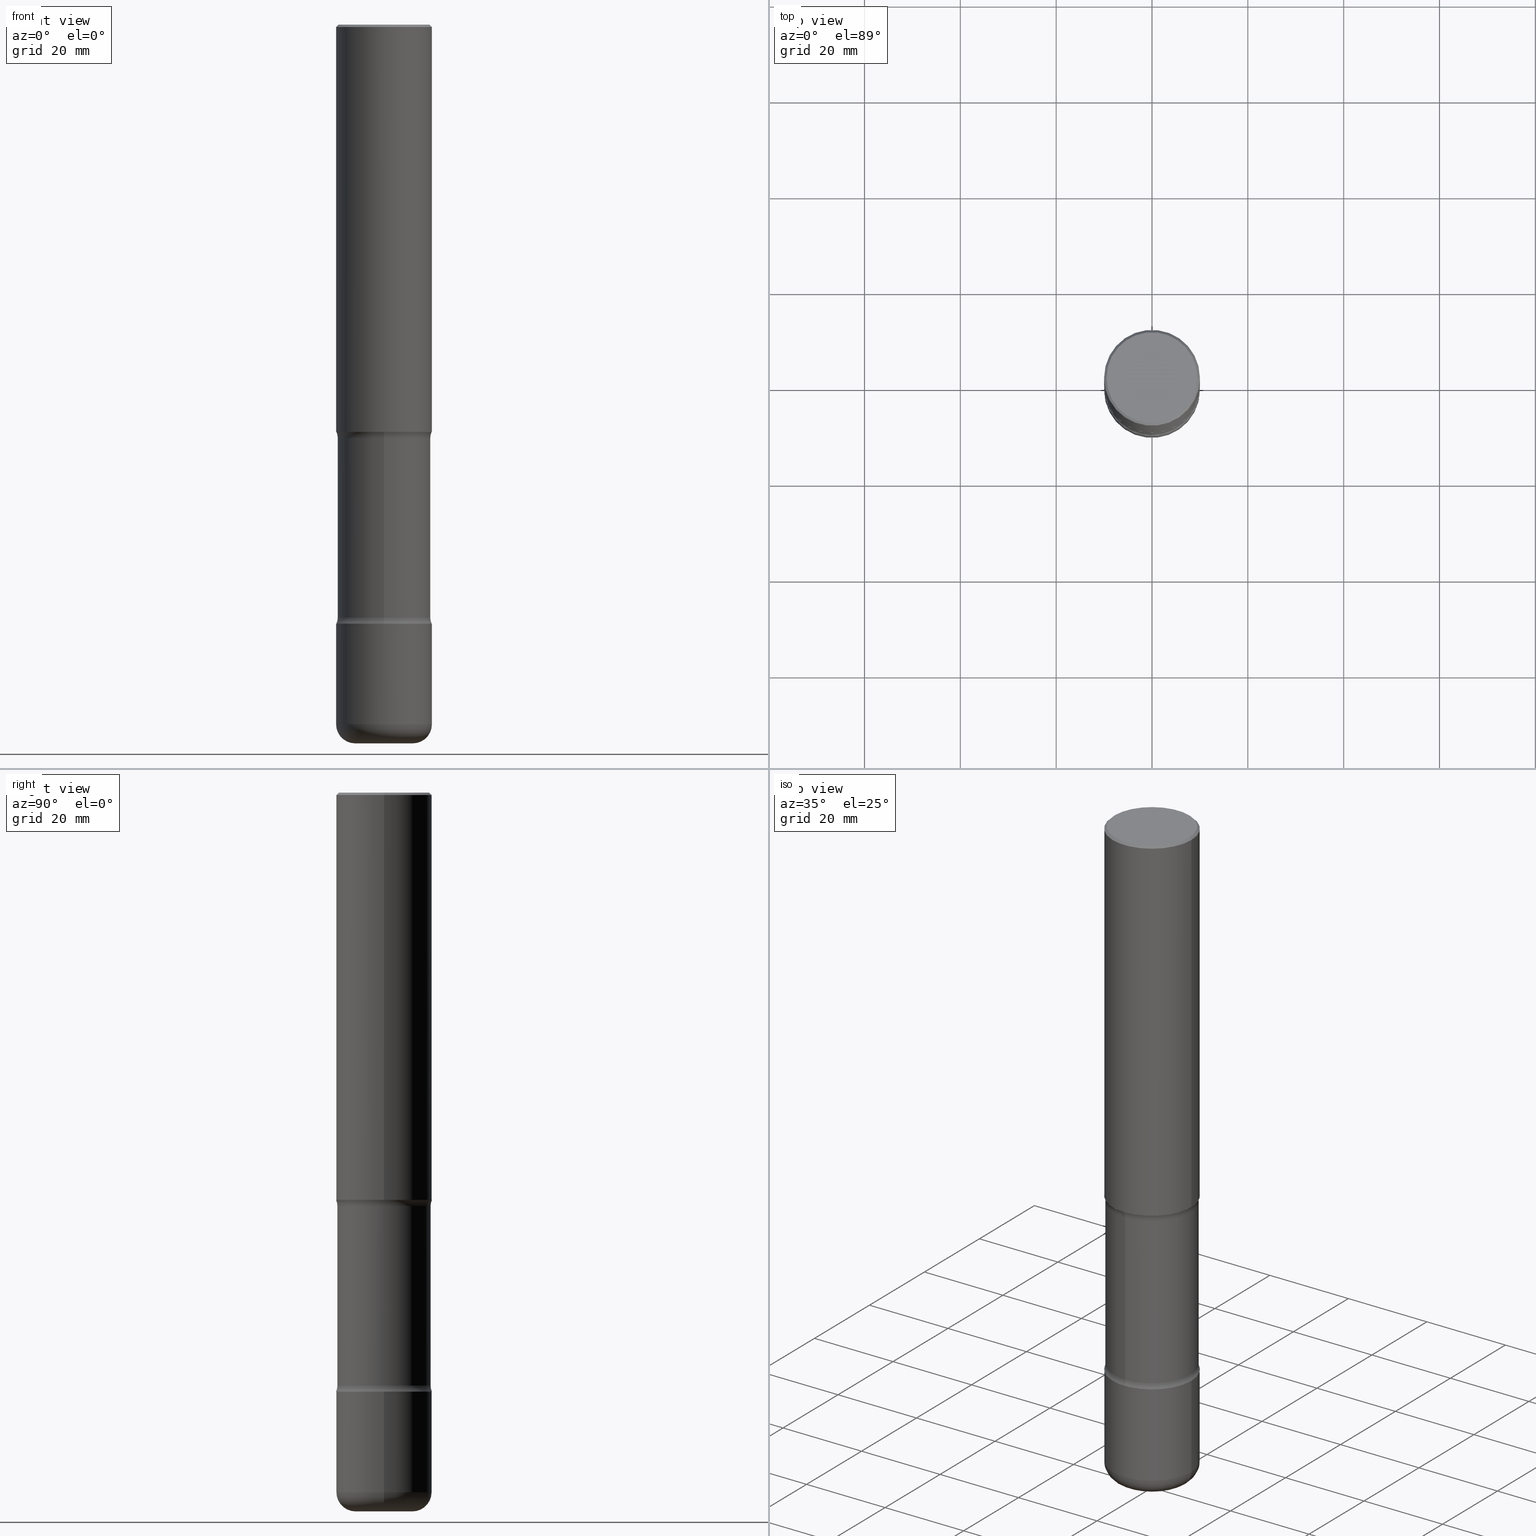
[diagram: canonical four-view strip — front | top / right | iso, engineering-drawing reading convention]
A machine part, canonical four-view strip (front | top / right | iso — engineering-drawing reading convention). The complete STEP part file that produces these views, byte-faithful:
ISO-10303-21;
HEADER;
FILE_DESCRIPTION (( 'STEP AP203' ),
    '1' );
FILE_NAME ('44808.STEP',
    '2024-03-02T03:36:44',
    ( '' ),
    ( '' ),
    'SwSTEP 2.0',
    'SolidWorks 2023',
    '' );
FILE_SCHEMA (( 'CONFIG_CONTROL_DESIGN' ));
ENDSEC;

DATA;
#1 = EDGE_CURVE ( 'NONE', #225, #136, #164, .T. ) ;
#2 = EDGE_LOOP ( 'NONE', ( #224, #547, #9, #104 ) ) ;
#3 = EDGE_CURVE ( 'NONE', #494, #309, #173, .T. ) ;
#4 = CARTESIAN_POINT ( 'NONE',  ( -0.3936999999999998279, 2.679362779428218735E-15, -0.02000000000000008715 ) ) ;
#5 = CARTESIAN_POINT ( 'NONE',  ( 0.3937000000000001609, -1.993147037091996521E-14, -4.921199999999998020 ) ) ;
#6 = ORIENTED_EDGE ( 'NONE', *, *, #231, .T. ) ;
#7 = PRODUCT ( '44808', '44808', '', ( #421 ) ) ;
#8 = CARTESIAN_POINT ( 'NONE',  ( -0.2362000000000002709, -1.810613454482786010E-14, -5.905499999999998195 ) ) ;
#9 = ORIENTED_EDGE ( 'NONE', *, *, #404, .T. ) ;
#10 =( NAMED_UNIT ( * ) SI_UNIT ( $, .STERADIAN. ) SOLID_ANGLE_UNIT ( ) );
#11 = AXIS2_PLACEMENT_3D ( 'NONE', #432, #268, #402 ) ;
#12 = CARTESIAN_POINT ( 'NONE',  ( 1.203464108899828931E-28, -1.718227796471488199E-14, -4.921199999999998020 ) ) ;
#13 = CIRCLE ( 'NONE', #59, 0.3937000000000002164 ) ;
#14 = ORIENTED_EDGE ( 'NONE', *, *, #61, .T. ) ;
#15 = DIRECTION ( 'NONE',  ( 1.000000000000000000, -6.982962677686265133E-15, 0.000000000000000000 ) ) ;
#16 = CARTESIAN_POINT ( 'NONE',  ( 3.548392484666395067E-15, 0.5081499999999830042, -4.870938707736469198 ) ) ;
#17 = FACE_OUTER_BOUND ( 'NONE', #95, .T. ) ;
#18 = ORIENTED_EDGE ( 'NONE', *, *, #371, .T. ) ;
#19 = DIRECTION ( 'NONE',  ( -2.445468806185136597E-29, 3.491481338843145583E-15, 1.000000000000000000 ) ) ;
#20 = FACE_OUTER_BOUND ( 'NONE', #278, .T. ) ;
#21 = PRODUCT_DEFINITION ( 'UNKNOWN', '', #300, #152 ) ;
#22 = VERTEX_POINT ( 'NONE', #163 ) ;
#23 = VECTOR ( 'NONE', #491, 39.37007874015748143 ) ;
#24 = FACE_OUTER_BOUND ( 'NONE', #127, .T. ) ;
#25 = DIRECTION ( 'NONE',  ( 1.000000000000000000, -6.982962677686265922E-15, 4.876176775795935793E-29 ) ) ;
#26 = EDGE_LOOP ( 'NONE', ( #372, #112 ) ) ;
#27 = CALENDAR_DATE ( 2024, 1, 3 ) ;
#28 = ORIENTED_EDGE ( 'NONE', *, *, #496, .F. ) ;
#29 = APPROVAL_DATE_TIME ( #250, #436 ) ;
#30 = ORIENTED_EDGE ( 'NONE', *, *, #431, .T. ) ;
#31 = CALENDAR_DATE ( 2024, 1, 3 ) ;
#32 = CARTESIAN_POINT ( 'NONE',  ( 1.190714821994619211E-28, -1.701335106103498951E-14, -4.870938707736467421 ) ) ;
#33 = COORDINATED_UNIVERSAL_TIME_OFFSET ( 5, 0, .BEHIND. ) ;
#34 = LINE ( 'NONE', #167, #23 ) ;
#35 = EDGE_CURVE ( 'NONE', #354, #72, #65, .T. ) ;
#36 = DIRECTION ( 'NONE',  ( -2.445468806185136597E-29, 3.491481338843145583E-15, 1.000000000000000000 ) ) ;
#37 = DIRECTION ( 'NONE',  ( 1.000000000000000000, 0.000000000000000000, 0.000000000000000000 ) ) ;
#38 = DIRECTION ( 'NONE',  ( -2.445468806185136597E-29, 3.491481338843145583E-15, 1.000000000000000000 ) ) ;
#39 = CC_DESIGN_PERSON_AND_ORGANIZATION_ASSIGNMENT ( #373, #459, ( #221 ) ) ;
#40 = CARTESIAN_POINT ( 'NONE',  ( 3.548392484666357991E-15, 0.5081499999999880002, -3.396661292263530640 ) ) ;
#41 = AXIS2_PLACEMENT_3D ( 'NONE', #120, #420, #468 ) ;
#42 = AXIS2_PLACEMENT_3D ( 'NONE', #461, #64, #103 ) ;
#43 = CARTESIAN_POINT ( 'NONE',  ( 1.203464108899828931E-28, -1.718227796471488199E-14, -4.921199999999998020 ) ) ;
#44 = CARTESIAN_POINT ( 'NONE',  ( 1.444171603492631822E-28, -2.061894304653818881E-14, -5.905499999999998195 ) ) ;
#45 = ADVANCED_FACE ( 'NONE', ( #215 ), #521, .F. ) ;
#46 = AXIS2_PLACEMENT_3D ( 'NONE', #471, #262, #527 ) ;
#47 = APPLICATION_CONTEXT ( 'configuration controlled 3d designs of mechanical parts and assemblies' ) ;
#48 = CIRCLE ( 'NONE', #492, 0.3936999999999998279 ) ;
#49 = DIRECTION ( 'NONE',  ( 1.000000000000000000, -6.982962677686265133E-15, 0.000000000000000000 ) ) ;
#50 = ORIENTED_EDGE ( 'NONE', *, *, #99, .F. ) ;
#51 = LINE ( 'NONE', #4, #365 ) ;
#52 = ADVANCED_FACE ( 'NONE', ( #78 ), #125, .T. ) ;
#53 = EDGE_LOOP ( 'NONE', ( #348, #318 ) ) ;
#54 = FACE_OUTER_BOUND ( 'NONE', #149, .T. ) ;
#55 = CC_DESIGN_PERSON_AND_ORGANIZATION_ASSIGNMENT ( #110, #79, ( #300 ) ) ;
#56 = CARTESIAN_POINT ( 'NONE',  ( -2.700978061722532529E-15, -0.3937000000000173139, -4.921199999999997132 ) ) ;
#57 = CIRCLE ( 'NONE', #399, 0.3831499999999999906 ) ;
#58 = DIRECTION ( 'NONE',  ( -6.982962677686269077E-15, -1.000000000000000000, 0.000000000000000000 ) ) ;
#59 = AXIS2_PLACEMENT_3D ( 'NONE', #495, #137, #319 ) ;
#60 = CARTESIAN_POINT ( 'NONE',  ( 0.3937000000000002164, -2.749192406205084794E-15, 1.919750796630861012E-29 ) ) ;
#61 = EDGE_CURVE ( 'NONE', #406, #309, #385, .T. ) ;
#62 = CARTESIAN_POINT ( 'NONE',  ( 0.000000000000000000, 0.000000000000000000, 0.000000000000000000 ) ) ;
#63 = ORIENTED_EDGE ( 'NONE', *, *, #151, .T. ) ;
#64 = DIRECTION ( 'NONE',  ( 2.536601494120493495E-29, -3.360974142769239712E-15, -1.000000000000000000 ) ) ;
#65 = CIRCLE ( 'NONE', #315, 0.1250000000000000278 ) ;
#66 = APPROVAL_PERSON_ORGANIZATION ( #165, #124, #329 ) ;
#67 = ORIENTED_EDGE ( 'NONE', *, *, #139, .F. ) ;
#68 = APPLICATION_CONTEXT ( 'configuration controlled 3d designs of mechanical parts and assemblies' ) ;
#69 =( CONVERSION_BASED_UNIT ( 'INCH', #445 ) LENGTH_UNIT ( ) NAMED_UNIT ( #346 ) );
#70 = EDGE_CURVE ( 'NONE', #225, #157, #462, .T. ) ;
#71 = ORIENTED_EDGE ( 'NONE', *, *, #474, .F. ) ;
#72 = VERTEX_POINT ( 'NONE', #85 ) ;
#73 = ORIENTED_EDGE ( 'NONE', *, *, #361, .F. ) ;
#74 = CLOSED_SHELL ( 'NONE', ( #307, #279, #423, #559, #330, #259 ) ) ;
#75 = CIRCLE ( 'NONE', #539, 0.3831500000000000461 ) ;
#76 = EDGE_CURVE ( 'NONE', #438, #192, #526, .T. ) ;
#77 = CARTESIAN_POINT ( 'NONE',  ( 1.453141793966108941E-28, -2.049048481344264493E-14, -5.905499999999998195 ) ) ;
#78 = FACE_OUTER_BOUND ( 'NONE', #458, .T. ) ;
#79 = PERSON_AND_ORGANIZATION_ROLE ( 'design_supplier' ) ;
#80 = EDGE_CURVE ( 'NONE', #157, #438, #168, .T. ) ;
#81 = DIRECTION ( 'NONE',  ( 6.982962677686265922E-15, 1.000000000000000000, -2.775563112689115512E-15 ) ) ;
#82 = DIRECTION ( 'NONE',  ( -2.536601494120493495E-29, 3.360974142769239318E-15, 1.000000000000000000 ) ) ;
#83 = CIRCLE ( 'NONE', #236, 0.3937000000000001609 ) ;
#84 = AXIS2_PLACEMENT_3D ( 'NONE', #183, #19, #146 ) ;
#85 = CARTESIAN_POINT ( 'NONE',  ( 2.749192406205166047E-15, 0.3936999999999885036, -3.346399999999999153 ) ) ;
#86 = FACE_OUTER_BOUND ( 'NONE', #523, .T. ) ;
#87 = AXIS2_PLACEMENT_3D ( 'NONE', #530, #90, #260 ) ;
#88 = APPROVAL_PERSON_ORGANIZATION ( #515, #436, #150 ) ;
#89 = TOROIDAL_SURFACE ( 'NONE', #42, 0.5081500000000001016, 0.1250000000000000555 ) ;
#90 = DIRECTION ( 'NONE',  ( -2.445468806185136597E-29, 3.491481338843145583E-15, 1.000000000000000000 ) ) ;
#91 = DIRECTION ( 'NONE',  ( 1.000000000000000000, -6.982962677686266711E-15, 4.883557194083112340E-29 ) ) ;
#92 = ORIENTED_EDGE ( 'NONE', *, *, #269, .T. ) ;
#93 = DIRECTION ( 'NONE',  ( -1.000000000000000000, 6.982962677686265922E-15, -4.876176775795935793E-29 ) ) ;
#94 = ADVANCED_FACE ( 'NONE', ( #475 ), #509, .T. ) ;
#95 = EDGE_LOOP ( 'NONE', ( #457, #67, #92, #502 ) ) ;
#96 = DIRECTION ( 'NONE',  ( -1.000000000000000000, 6.982962677686265922E-15, -4.876176775795935793E-29 ) ) ;
#97 = CLOSED_SHELL ( 'NONE', ( #52, #261, #506, #292, #128, #45, #254, #356 ) ) ;
#98 = CARTESIAN_POINT ( 'NONE',  ( 2.675522149955611729E-15, 0.3831499999999830042, -4.870938707736469198 ) ) ;
#99 = EDGE_CURVE ( 'NONE', #354, #507, #227, .T. ) ;
#100 = CARTESIAN_POINT ( 'NONE',  ( 8.167493925109434306E-29, -1.205834278836177543E-14, -3.396661292263528420 ) ) ;
#101 = CARTESIAN_POINT ( 'NONE',  ( 8.183516813017936514E-29, -1.168389315230469505E-14, -3.346399999999997821 ) ) ;
#102 = ORIENTED_EDGE ( 'NONE', *, *, #496, .T. ) ;
#103 = DIRECTION ( 'NONE',  ( 6.982962677686266711E-15, 1.000000000000000000, -3.360974142769239712E-15 ) ) ;
#104 = ORIENTED_EDGE ( 'NONE', *, *, #76, .F. ) ;
#105 = EDGE_CURVE ( 'NONE', #529, #157, #216, .T. ) ;
#106 = FACE_OUTER_BOUND ( 'NONE', #242, .T. ) ;
#107 = CIRCLE ( 'NONE', #512, 0.1574999999999997791 ) ;
#108 = AXIS2_PLACEMENT_3D ( 'NONE', #193, #188, #363 ) ;
#109 = ORIENTED_EDGE ( 'NONE', *, *, #118, .T. ) ;
#110 = PERSON_AND_ORGANIZATION ( #489, #504 ) ;
#111 = EDGE_CURVE ( 'NONE', #494, #424, #343, .T. ) ;
#112 = ORIENTED_EDGE ( 'NONE', *, *, #76, .T. ) ;
#113 = COORDINATED_UNIVERSAL_TIME_OFFSET ( 5, 0, .BEHIND. ) ;
#114 = ORIENTED_EDGE ( 'NONE', *, *, #111, .T. ) ;
#115 = EDGE_CURVE ( 'NONE', #309, #406, #57, .T. ) ;
#116 = PLANE ( 'NONE',  #290 ) ;
#117 = PERSON_AND_ORGANIZATION ( #489, #504 ) ;
#118 = EDGE_CURVE ( 'NONE', #424, #494, #83, .T. ) ;
#119 = CARTESIAN_POINT ( 'NONE',  ( -2.664788934784287418E-15, -0.3831500000000169770, -4.870938707736466533 ) ) ;
#120 = CARTESIAN_POINT ( 'NONE',  ( 1.203464108899828931E-28, -1.718227796471488199E-14, -4.921199999999998020 ) ) ;
#121 = DIRECTION ( 'NONE',  ( 1.000000000000000000, -6.982962677686265922E-15, 0.000000000000000000 ) ) ;
#122 = TOROIDAL_SURFACE ( 'NONE', #350, 0.2362000000000002986, 0.1574999999999997513 ) ;
#123 = AXIS2_PLACEMENT_3D ( 'NONE', #77, #293, #467 ) ;
#124 = APPROVAL ( #383, 'UNSPECIFIED' ) ;
#125 = CYLINDRICAL_SURFACE ( 'NONE', #392, 0.3831499999999999906 ) ;
#126 = DIRECTION ( 'NONE',  ( -2.445468806185136597E-29, 3.491481338843145583E-15, 1.000000000000000000 ) ) ;
#127 = EDGE_LOOP ( 'NONE', ( #178, #234, #187, #351 ) ) ;
#128 = ADVANCED_FACE ( 'NONE', ( #255 ), #116, .F. ) ;
#129 = FACE_OUTER_BOUND ( 'NONE', #313, .T. ) ;
#130 = ORIENTED_EDGE ( 'NONE', *, *, #460, .T. ) ;
#131 = EDGE_CURVE ( 'NONE', #157, #529, #153, .T. ) ;
#132 = CLOSED_SHELL ( 'NONE', ( #455, #171, #147, #418, #94, #177 ) ) ;
#133 = DIRECTION ( 'NONE',  ( -2.445468806185136597E-29, 3.491481338843145583E-15, 1.000000000000000000 ) ) ;
#134 = ORIENTED_EDGE ( 'NONE', *, *, #35, .F. ) ;
#135 = DIRECTION ( 'NONE',  ( 2.536601494120493495E-29, -3.360974142769239712E-15, -1.000000000000000000 ) ) ;
#136 = VERTEX_POINT ( 'NONE', #441 ) ;
#137 = DIRECTION ( 'NONE',  ( -2.445468806185136597E-29, 3.491481338843145583E-15, 1.000000000000000000 ) ) ;
#138 = CARTESIAN_POINT ( 'NONE',  ( 0.2362000000000002986, -2.171841052013989672E-14, -5.747999999999999332 ) ) ;
#139 = EDGE_CURVE ( 'NONE', #414, #22, #282, .T. ) ;
#140 = DIRECTION ( 'NONE',  ( -2.445468806185136597E-29, 3.491481338843145583E-15, 1.000000000000000000 ) ) ;
#141 = CARTESIAN_POINT ( 'NONE',  ( 4.890937612370294178E-31, -6.982962677686321191E-17, -0.02000000000000008715 ) ) ;
#142 = AXIS2_PLACEMENT_3D ( 'NONE', #303, #433, #251 ) ;
#143 = ORIENTED_EDGE ( 'NONE', *, *, #209, .F. ) ;
#144 = DIRECTION ( 'NONE',  ( 2.445468806185136597E-29, -3.491481338843145583E-15, -1.000000000000000000 ) ) ;
#145 = ORIENTED_EDGE ( 'NONE', *, *, #99, .T. ) ;
#146 = DIRECTION ( 'NONE',  ( 1.000000000000000000, -6.982962677686266711E-15, 4.876176775795935793E-29 ) ) ;
#147 = ADVANCED_FACE ( 'NONE', ( #54 ), #189, .T. ) ;
#148 = LINE ( 'NONE', #248, #352 ) ;
#149 = EDGE_LOOP ( 'NONE', ( #366, #304 ) ) ;
#150 = APPROVAL_ROLE ( '' ) ;
#151 = EDGE_CURVE ( 'NONE', #136, #225, #364, .T. ) ;
#152 = DESIGN_CONTEXT ( 'detailed design', #68, 'design' ) ;
#153 = CIRCLE ( 'NONE', #46, 0.3937000000000002164 ) ;
#154 = CIRCLE ( 'NONE', #228, 0.3736999999999998101 ) ;
#155 = ORIENTED_EDGE ( 'NONE', *, *, #431, .F. ) ;
#156 = APPROVAL_DATE_TIME ( #370, #480 ) ;
#157 = VERTEX_POINT ( 'NONE', #487 ) ;
#158 = DATE_AND_TIME ( #555, #419 ) ;
#159 = CC_DESIGN_PERSON_AND_ORGANIZATION_ASSIGNMENT ( #295, #469, ( #7 ) ) ;
#160 = CARTESIAN_POINT ( 'NONE',  ( 1.203464108899828931E-28, -1.718227796471488199E-14, -4.921199999999998020 ) ) ;
#161 = CARTESIAN_POINT ( 'NONE',  ( 0.000000000000000000, 0.000000000000000000, 0.000000000000000000 ) ) ;
#162 = CYLINDRICAL_SURFACE ( 'NONE', #123, 0.3831499999999999906 ) ;
#163 = CARTESIAN_POINT ( 'NONE',  ( 0.3736999999999998101, -2.667287895133366781E-15, 8.537024980219274507E-18 ) ) ;
#164 = CIRCLE ( 'NONE', #556, 0.2362000000000002709 ) ;
#165 = PERSON_AND_ORGANIZATION ( #489, #504 ) ;
#166 = VECTOR ( 'NONE', #389, 39.37007874015748143 ) ;
#167 = CARTESIAN_POINT ( 'NONE',  ( 2.675522149955637761E-15, 0.3831499999999795070, -5.905499999999999972 ) ) ;
#168 = LINE ( 'NONE', #517, #453 ) ;
#169 = CARTESIAN_POINT ( 'NONE',  ( -3.486162057567484542E-15, -0.5081500000000169770, -4.870938707736466533 ) ) ;
#170 = MANIFOLD_SOLID_BREP ( 'Body-Move/Copy2[4]', #97 ) ;
#171 = ADVANCED_FACE ( 'NONE', ( #437 ), #122, .T. ) ;
#172 = DIRECTION ( 'NONE',  ( 6.982962677686265922E-15, 1.000000000000000000, -2.851987987643756480E-15 ) ) ;
#173 = CIRCLE ( 'NONE', #299, 0.1249999999999999584 ) ;
#174 = AXIS2_PLACEMENT_3D ( 'NONE', #214, #384, #545 ) ;
#175 = CC_DESIGN_APPROVAL ( #124, ( #221 ) ) ;
#176 = DIRECTION ( 'NONE',  ( 6.982962677686266711E-15, 1.000000000000000000, -3.360974142769239712E-15 ) ) ;
#177 = ADVANCED_FACE ( 'NONE', ( #271 ), #398, .F. ) ;
#178 = ORIENTED_EDGE ( 'NONE', *, *, #105, .T. ) ;
#179 = DIRECTION ( 'NONE',  ( 2.438088387897960049E-29, -3.491481338843145188E-15, -1.000000000000000000 ) ) ;
#180 = CC_DESIGN_PERSON_AND_ORGANIZATION_ASSIGNMENT ( #416, #333, ( #21 ) ) ;
#181 = ORIENTED_EDGE ( 'NONE', *, *, #1, .T. ) ;
#182 = FACE_OUTER_BOUND ( 'NONE', #200, .T. ) ;
#183 = CARTESIAN_POINT ( 'NONE',  ( 0.000000000000000000, 0.000000000000000000, 0.000000000000000000 ) ) ;
#184 = AXIS2_PLACEMENT_3D ( 'NONE', #357, #478, #305 ) ;
#185 =( GEOMETRIC_REPRESENTATION_CONTEXT ( 3 ) GLOBAL_UNCERTAINTY_ASSIGNED_CONTEXT ( ( #519 ) ) GLOBAL_UNIT_ASSIGNED_CONTEXT ( ( #69, #397, #10 ) ) REPRESENTATION_CONTEXT ( 'NONE', 'WORKASPACE' ) );
#186 = DIRECTION ( 'NONE',  ( -6.982962677686266711E-15, -1.000000000000000000, 3.491481338843145583E-15 ) ) ;
#187 = ORIENTED_EDGE ( 'NONE', *, *, #296, .F. ) ;
#188 = DIRECTION ( 'NONE',  ( 2.536601494120493495E-29, -3.360974142769239712E-15, -1.000000000000000000 ) ) ;
#189 = PLANE ( 'NONE',  #374 ) ;
#190 = CARTESIAN_POINT ( 'NONE',  ( -0.3936999999999998279, 2.679362779428218735E-15, -0.02000000000000008715 ) ) ;
#191 = CARTESIAN_POINT ( 'NONE',  ( -0.3937000000000002164, -3.079454638853261231E-15, -3.346399999999997821 ) ) ;
#192 = VERTEX_POINT ( 'NONE', #5 ) ;
#193 = CARTESIAN_POINT ( 'NONE',  ( 8.040001056057337111E-29, -1.188941588468188137E-14, -3.346399999999997821 ) ) ;
#194 = VECTOR ( 'NONE', #353, 39.37007874015748143 ) ;
#195 = DIRECTION ( 'NONE',  ( -2.438088387897960049E-29, 3.491481338843145188E-15, 1.000000000000000000 ) ) ;
#196 = CIRCLE ( 'NONE', #316, 0.3937000000000002164 ) ;
#197 = ORIENTED_EDGE ( 'NONE', *, *, #118, .F. ) ;
#198 = DIRECTION ( 'NONE',  ( 2.536601494120493495E-29, -3.360974142769239712E-15, -1.000000000000000000 ) ) ;
#199 = FACE_OUTER_BOUND ( 'NONE', #505, .T. ) ;
#200 = EDGE_LOOP ( 'NONE', ( #244, #197, #388, #14 ) ) ;
#201 = EDGE_CURVE ( 'NONE', #136, #529, #107, .T. ) ;
#202 = APPROVAL_DATE_TIME ( #377, #124 ) ;
#203 = ORIENTED_EDGE ( 'NONE', *, *, #105, .F. ) ;
#204 = COORDINATED_UNIVERSAL_TIME_OFFSET ( 5, 0, .BEHIND. ) ;
#205 = AXIS2_PLACEMENT_3D ( 'NONE', #525, #310, #308 ) ;
#206 = LOCAL_TIME ( 22, 36, 44.00000000000000000, #288 ) ;
#207 = ORIENTED_EDGE ( 'NONE', *, *, #70, .T. ) ;
#208 = PERSON_AND_ORGANIZATION ( #489, #504 ) ;
#209 = EDGE_CURVE ( 'NONE', #424, #406, #427, .T. ) ;
#210 = DIRECTION ( 'NONE',  ( 2.536601494120493495E-29, -3.360974142769239712E-15, -1.000000000000000000 ) ) ;
#211 = APPROVAL_ROLE ( '' ) ;
#212 = DIRECTION ( 'NONE',  ( -6.982962677686265922E-15, -1.000000000000000000, 3.360974142769239318E-15 ) ) ;
#213 = APPLICATION_PROTOCOL_DEFINITION ( 'international standard', 'config_control_design', 1994, #47 ) ;
#214 = CARTESIAN_POINT ( 'NONE',  ( 8.040001056057337111E-29, -1.188941588468188137E-14, -3.346399999999997821 ) ) ;
#215 = FACE_OUTER_BOUND ( 'NONE', #456, .T. ) ;
#216 = CIRCLE ( 'NONE', #409, 0.3937000000000002164 ) ;
#217 = DIRECTION ( 'NONE',  ( -2.445468806185136597E-29, 3.491481338843145583E-15, 1.000000000000000000 ) ) ;
#218 = DIRECTION ( 'NONE',  ( 7.105427357601001859E-15, 1.000000000000000000, -3.491481338843145583E-15 ) ) ;
#219 = CARTESIAN_POINT ( 'NONE',  ( 1.405655469795216198E-28, -2.006903473567039704E-14, -5.747999999999999332 ) ) ;
#220 = AXIS2_PLACEMENT_3D ( 'NONE', #516, #218, #426 ) ;
#221 = SECURITY_CLASSIFICATION ( '', '', #413 ) ;
#222 = EDGE_CURVE ( 'NONE', #507, #284, #263, .T. ) ;
#223 = DIRECTION ( 'NONE',  ( 2.438088387897960049E-29, -3.491481338843145188E-15, -1.000000000000000000 ) ) ;
#224 = ORIENTED_EDGE ( 'NONE', *, *, #80, .F. ) ;
#225 = VERTEX_POINT ( 'NONE', #8 ) ;
#226 = FACE_OUTER_BOUND ( 'NONE', #551, .T. ) ;
#227 = CIRCLE ( 'NONE', #537, 0.3831500000000000461 ) ;
#228 = AXIS2_PLACEMENT_3D ( 'NONE', #233, #38, #232 ) ;
#229 = DIRECTION ( 'NONE',  ( 1.000000000000000000, -6.982962677686272233E-15, 0.000000000000000000 ) ) ;
#230 = ORIENTED_EDGE ( 'NONE', *, *, #269, .F. ) ;
#231 = EDGE_CURVE ( 'NONE', #369, #403, #347, .T. ) ;
#232 = DIRECTION ( 'NONE',  ( 1.000000000000000000, -6.982962677686266711E-15, 4.876212485538977921E-29 ) ) ;
#233 = CARTESIAN_POINT ( 'NONE',  ( -2.087702828670439639E-46, 2.980686340760894400E-32, 8.537024980200822558E-18 ) ) ;
#234 = ORIENTED_EDGE ( 'NONE', *, *, #80, .T. ) ;
#235 = LINE ( 'NONE', #532, #336 ) ;
#236 = AXIS2_PLACEMENT_3D ( 'NONE', #160, #332, #81 ) ;
#237 = CC_DESIGN_APPROVAL ( #436, ( #300 ) ) ;
#238 = DIRECTION ( 'NONE',  ( -2.445468806185136597E-29, 3.491481338843145583E-15, 1.000000000000000000 ) ) ;
#239 = CC_DESIGN_PERSON_AND_ORGANIZATION_ASSIGNMENT ( #117, #466, ( #300 ) ) ;
#240 = ORIENTED_EDGE ( 'NONE', *, *, #272, .T. ) ;
#241 = APPROVAL_STATUS ( 'not_yet_approved' ) ;
#242 = EDGE_LOOP ( 'NONE', ( #498, #71 ) ) ;
#243 = CALENDAR_DATE ( 2024, 1, 3 ) ;
#244 = ORIENTED_EDGE ( 'NONE', *, *, #3, .F. ) ;
#245 = APPROVAL_STATUS ( 'not_yet_approved' ) ;
#246 = CIRCLE ( 'NONE', #108, 0.3937000000000003830 ) ;
#247 = DIRECTION ( 'NONE',  ( 1.000000000000000000, -6.982962677686265133E-15, 0.000000000000000000 ) ) ;
#248 = CARTESIAN_POINT ( 'NONE',  ( 0.3936999999999998279, -2.770807688499514156E-15, -0.02000000000000008715 ) ) ;
#249 = CARTESIAN_POINT ( 'NONE',  ( 1.203464108899828931E-28, -1.718227796471488199E-14, -4.921199999999998020 ) ) ;
#250 = DATE_AND_TIME ( #503, #206 ) ;
#251 = DIRECTION ( 'NONE',  ( -1.000000000000000000, 6.982962677686266711E-15, 0.000000000000000000 ) ) ;
#252 = PRODUCT_DEFINITION_SHAPE ( 'NONE', 'NONE',  #21 ) ;
#253 = CARTESIAN_POINT ( 'NONE',  ( 1.453141793966108941E-28, -2.049048481344264493E-14, -5.905499999999998195 ) ) ;
#254 = ADVANCED_FACE ( 'NONE', ( #182 ), #256, .F. ) ;
#255 = FACE_OUTER_BOUND ( 'NONE', #331, .T. ) ;
#256 = TOROIDAL_SURFACE ( 'NONE', #205, 0.5081499999999999906, 0.1250000000000000000 ) ;
#257 = APPROVAL_PERSON_ORGANIZATION ( #208, #480, #211 ) ;
#258 = DIRECTION ( 'NONE',  ( -6.982962677686269077E-15, -1.000000000000000000, 0.000000000000000000 ) ) ;
#259 = ADVANCED_FACE ( 'NONE', ( #129 ), #312, .T. ) ;
#260 = DIRECTION ( 'NONE',  ( 1.000000000000000000, -6.982962677686265922E-15, 4.876176775795935793E-29 ) ) ;
#261 = ADVANCED_FACE ( 'NONE', ( #485 ), #334, .F. ) ;
#262 = DIRECTION ( 'NONE',  ( -2.445468806185136597E-29, 3.491481338843145583E-15, 1.000000000000000000 ) ) ;
#263 = CIRCLE ( 'NONE', #184, 0.1250000000000000278 ) ;
#264 = AXIS2_PLACEMENT_3D ( 'NONE', #43, #337, #121 ) ;
#265 = CONICAL_SURFACE ( 'NONE', #142, 0.3936999999999998279, 0.7853981633974457255 ) ;
#266 = DIRECTION ( 'NONE',  ( -2.445468806185136597E-29, 3.491481338843145583E-15, 1.000000000000000000 ) ) ;
#267 = ORIENTED_EDGE ( 'NONE', *, *, #381, .T. ) ;
#268 = DIRECTION ( 'NONE',  ( -2.445468806185136597E-29, 3.491481338843145583E-15, 1.000000000000000000 ) ) ;
#269 = EDGE_CURVE ( 'NONE', #414, #449, #51, .T. ) ;
#270 = ORIENTED_EDGE ( 'NONE', *, *, #131, .F. ) ;
#271 = FACE_OUTER_BOUND ( 'NONE', #26, .T. ) ;
#272 = EDGE_CURVE ( 'NONE', #403, #449, #473, .T. ) ;
#273 = ORIENTED_EDGE ( 'NONE', *, *, #361, .T. ) ;
#274 = CC_DESIGN_APPROVAL ( #480, ( #21 ) ) ;
#275 = FACE_OUTER_BOUND ( 'NONE', #484, .T. ) ;
#276 = CARTESIAN_POINT ( 'NONE',  ( 0.3937000000000001609, -2.281822714187548341E-14, -5.747999999999999332 ) ) ;
#277 = LINE ( 'NONE', #60, #520 ) ;
#278 = EDGE_LOOP ( 'NONE', ( #358, #102, #267, #286 ) ) ;
#279 = ADVANCED_FACE ( 'NONE', ( #86 ), #265, .T. ) ;
#280 = CARTESIAN_POINT ( 'NONE',  ( 2.749192406205204307E-15, 0.3936999999999829525, -4.921199999999999797 ) ) ;
#281 = ORIENTED_EDGE ( 'NONE', *, *, #3, .T. ) ;
#282 = CIRCLE ( 'NONE', #11, 0.3736999999999998101 ) ;
#283 = AXIS2_PLACEMENT_3D ( 'NONE', #314, #408, #367 ) ;
#284 = VERTEX_POINT ( 'NONE', #411 ) ;
#285 = SHAPE_DEFINITION_REPRESENTATION ( #252, #524 ) ;
#286 = ORIENTED_EDGE ( 'NONE', *, *, #115, .F. ) ;
#287 = ORIENTED_EDGE ( 'NONE', *, *, #70, .F. ) ;
#288 = COORDINATED_UNIVERSAL_TIME_OFFSET ( 5, 0, .BEHIND. ) ;
#289 = PLANE ( 'NONE',  #435 ) ;
#290 = AXIS2_PLACEMENT_3D ( 'NONE', #297, #291, #465 ) ;
#291 = DIRECTION ( 'NONE',  ( 2.536601494120493495E-29, -3.360974142769239318E-15, -1.000000000000000000 ) ) ;
#292 = ADVANCED_FACE ( 'NONE', ( #199 ), #89, .F. ) ;
#293 = DIRECTION ( 'NONE',  ( 2.536601494120493495E-29, -3.360974142769239712E-15, -1.000000000000000000 ) ) ;
#294 = DIRECTION ( 'NONE',  ( 6.982962677686265922E-15, 1.000000000000000000, -2.851987987643756480E-15 ) ) ;
#295 = PERSON_AND_ORGANIZATION ( #489, #504 ) ;
#296 = EDGE_CURVE ( 'NONE', #192, #438, #410, .T. ) ;
#297 = CARTESIAN_POINT ( 'NONE',  ( 8.183516813017936514E-29, -1.168389315230469505E-14, -3.346399999999997821 ) ) ;
#298 = DIRECTION ( 'NONE',  ( -2.445468806185136877E-29, 3.491481338843145188E-15, 1.000000000000000000 ) ) ;
#299 = AXIS2_PLACEMENT_3D ( 'NONE', #169, #342, #558 ) ;
#300 = PRODUCT_DEFINITION_FORMATION_WITH_SPECIFIED_SOURCE ( 'ANY', '', #7, .NOT_KNOWN. ) ;
#301 = DIRECTION ( 'NONE',  ( 2.536601494120493495E-29, -3.360974142769239712E-15, -1.000000000000000000 ) ) ;
#302 = EDGE_CURVE ( 'NONE', #449, #403, #48, .T. ) ;
#303 = CARTESIAN_POINT ( 'NONE',  ( 4.890937612370294178E-31, -6.982962677686321191E-17, -0.02000000000000008715 ) ) ;
#304 = ORIENTED_EDGE ( 'NONE', *, *, #1, .F. ) ;
#305 = DIRECTION ( 'NONE',  ( 6.860497997771532351E-15, 1.000000000000000000, 0.000000000000000000 ) ) ;
#306 = AXIS2_PLACEMENT_3D ( 'NONE', #161, #508, #37 ) ;
#307 = ADVANCED_FACE ( 'NONE', ( #557 ), #553, .T. ) ;
#308 = DIRECTION ( 'NONE',  ( 6.982962677686266711E-15, 1.000000000000000000, -3.360974142769239712E-15 ) ) ;
#309 = VERTEX_POINT ( 'NONE', #119 ) ;
#310 = DIRECTION ( 'NONE',  ( 2.536601494120493495E-29, -3.360974142769239712E-15, -1.000000000000000000 ) ) ;
#311 = FACE_OUTER_BOUND ( 'NONE', #53, .T. ) ;
#312 = CYLINDRICAL_SURFACE ( 'NONE', #87, 0.3937000000000000499 ) ;
#313 = EDGE_LOOP ( 'NONE', ( #155, #531, #6, #538 ) ) ;
#314 = CARTESIAN_POINT ( 'NONE',  ( 8.163356291050434127E-29, -1.206426811583377416E-14, -3.396661292263528864 ) ) ;
#315 = AXIS2_PLACEMENT_3D ( 'NONE', #40, #378, #258 ) ;
#316 = AXIS2_PLACEMENT_3D ( 'NONE', #322, #140, #15 ) ;
#317 = CARTESIAN_POINT ( 'NONE',  ( 1.203464108899828931E-28, -1.718227796471488199E-14, -4.921199999999998020 ) ) ;
#318 = ORIENTED_EDGE ( 'NONE', *, *, #338, .T. ) ;
#319 = DIRECTION ( 'NONE',  ( 1.000000000000000000, -6.982962677686265133E-15, 0.000000000000000000 ) ) ;
#320 = DIRECTION ( 'NONE',  ( -1.000000000000000000, 6.982962677686266711E-15, 0.000000000000000000 ) ) ;
#321 = ORIENTED_EDGE ( 'NONE', *, *, #115, .T. ) ;
#322 = CARTESIAN_POINT ( 'NONE',  ( 8.183516813017936514E-29, -1.168389315230469505E-14, -3.346399999999997821 ) ) ;
#323 = DIRECTION ( 'NONE',  ( -2.445468806185136597E-29, 3.491481338843145583E-15, 1.000000000000000000 ) ) ;
#324 = ORIENTED_EDGE ( 'NONE', *, *, #381, .F. ) ;
#325 = DATE_AND_TIME ( #27, #400 ) ;
#326 = AXIS2_PLACEMENT_3D ( 'NONE', #439, #135, #176 ) ;
#327 = TOROIDAL_SURFACE ( 'NONE', #513, 0.2362000000000002986, 0.1574999999999997513 ) ;
#328 = ORIENTED_EDGE ( 'NONE', *, *, #460, .F. ) ;
#329 = APPROVAL_ROLE ( '' ) ;
#330 = ADVANCED_FACE ( 'NONE', ( #106 ), #289, .F. ) ;
#331 = EDGE_LOOP ( 'NONE', ( #73, #328 ) ) ;
#332 = DIRECTION ( 'NONE',  ( 2.536601494120493495E-29, -3.360974142769239712E-15, -1.000000000000000000 ) ) ;
#333 = PERSON_AND_ORGANIZATION_ROLE ( 'creator' ) ;
#334 = TOROIDAL_SURFACE ( 'NONE', #326, 0.5081499999999999906, 0.1250000000000000000 ) ;
#335 = AXIS2_PLACEMENT_3D ( 'NONE', #62, #535, #25 ) ;
#336 = VECTOR ( 'NONE', #450, 39.37007874015748143 ) ;
#337 = DIRECTION ( 'NONE',  ( -2.445468806185136597E-29, 3.491481338843145583E-15, 1.000000000000000000 ) ) ;
#338 = EDGE_CURVE ( 'NONE', #22, #414, #154, .T. ) ;
#339 = DIRECTION ( 'NONE',  ( 6.982962677686266711E-15, 1.000000000000000000, -2.851987987643756086E-15 ) ) ;
#340 = DIRECTION ( 'NONE',  ( 2.536601494120493495E-29, -3.360974142769239712E-15, -1.000000000000000000 ) ) ;
#341 = CARTESIAN_POINT ( 'NONE',  ( -0.3937000000000001609, -1.582824959950512552E-14, -4.921199999999998020 ) ) ;
#342 = DIRECTION ( 'NONE',  ( 1.000000000000000000, -6.860497997771530774E-15, 4.842397131823518897E-29 ) ) ;
#343 = CIRCLE ( 'NONE', #41, 0.3937000000000001609 ) ;
#344 = DIRECTION ( 'NONE',  ( -0.7071067811865456854, 2.468850131082237733E-15, -0.7071067811865493491 ) ) ;
#345 = VERTEX_POINT ( 'NONE', #191 ) ;
#346 = DIMENSIONAL_EXPONENTS ( 1.000000000000000000, 0.000000000000000000, 0.000000000000000000, 0.000000000000000000, 0.000000000000000000, 0.000000000000000000, 0.000000000000000000 ) ;
#347 = LINE ( 'NONE', #533, #194 ) ;
#348 = ORIENTED_EDGE ( 'NONE', *, *, #139, .T. ) ;
#349 = CARTESIAN_POINT ( 'NONE',  ( 1.444171603492631822E-28, -2.061894304653818881E-14, -5.905499999999998195 ) ) ;
#350 = AXIS2_PLACEMENT_3D ( 'NONE', #219, #133, #91 ) ;
#351 = ORIENTED_EDGE ( 'NONE', *, *, #404, .F. ) ;
#352 = VECTOR ( 'NONE', #422, 39.37007874015748143 ) ;
#353 = DIRECTION ( 'NONE',  ( -2.445468806185136877E-29, 3.491481338843145188E-15, 1.000000000000000000 ) ) ;
#354 = VERTEX_POINT ( 'NONE', #368 ) ;
#355 = CYLINDRICAL_SURFACE ( 'NONE', #84, 0.3937000000000002164 ) ;
#356 = ADVANCED_FACE ( 'NONE', ( #20 ), #162, .T. ) ;
#357 = CARTESIAN_POINT ( 'NONE',  ( -3.486162057567522407E-15, -0.5081500000000122030, -3.396661292263527088 ) ) ;
#358 = ORIENTED_EDGE ( 'NONE', *, *, #470, .F. ) ;
#359 = DIRECTION ( 'NONE',  ( 6.982962677686266711E-15, 1.000000000000000000, -2.851987987643756086E-15 ) ) ;
#360 = DIRECTION ( 'NONE',  ( -2.445468806185136597E-29, 3.491481338843145583E-15, 1.000000000000000000 ) ) ;
#361 = EDGE_CURVE ( 'NONE', #72, #284, #375, .T. ) ;
#362 = ORIENTED_EDGE ( 'NONE', *, *, #222, .T. ) ;
#363 = DIRECTION ( 'NONE',  ( 6.982962677686265133E-15, 1.000000000000000000, -2.775563112689113934E-15 ) ) ;
#364 = CIRCLE ( 'NONE', #550, 0.2362000000000002709 ) ;
#365 = VECTOR ( 'NONE', #344, 39.37007874015748143 ) ;
#366 = ORIENTED_EDGE ( 'NONE', *, *, #151, .F. ) ;
#367 = DIRECTION ( 'NONE',  ( 6.982962677686266711E-15, 1.000000000000000000, -3.360974142769239712E-15 ) ) ;
#368 = CARTESIAN_POINT ( 'NONE',  ( 2.675522149955574652E-15, 0.3831499999999879447, -3.396661292263529308 ) ) ;
#369 = VERTEX_POINT ( 'NONE', #446 ) ;
#370 = DATE_AND_TIME ( #243, #444 ) ;
#371 = EDGE_CURVE ( 'NONE', #22, #403, #148, .T. ) ;
#372 = ORIENTED_EDGE ( 'NONE', *, *, #296, .T. ) ;
#373 = PERSON_AND_ORGANIZATION ( #489, #504 ) ;
#374 = AXIS2_PLACEMENT_3D ( 'NONE', #349, #179, #93 ) ;
#375 = CIRCLE ( 'NONE', #174, 0.3937000000000003830 ) ;
#376 = ORIENTED_EDGE ( 'NONE', *, *, #201, .F. ) ;
#377 = DATE_AND_TIME ( #31, #454 ) ;
#378 = DIRECTION ( 'NONE',  ( -1.000000000000000000, 6.982962677686265922E-15, -4.883557194083112340E-29 ) ) ;
#379 = APPLICATION_PROTOCOL_DEFINITION ( 'international standard', 'config_control_design', 1994, #68 ) ;
#380 = DIRECTION ( 'NONE',  ( 1.000000000000000000, -6.982962677686266711E-15, 0.000000000000000000 ) ) ;
#381 = EDGE_CURVE ( 'NONE', #354, #406, #34, .T. ) ;
#382 = DIRECTION ( 'NONE',  ( 2.536601494120493495E-29, -3.360974142769239712E-15, -1.000000000000000000 ) ) ;
#383 = APPROVAL_STATUS ( 'not_yet_approved' ) ;
#384 = DIRECTION ( 'NONE',  ( 2.536601494120493495E-29, -3.360974142769239712E-15, -1.000000000000000000 ) ) ;
#385 = CIRCLE ( 'NONE', #481, 0.3831499999999999906 ) ;
#386 = AXIS2_PLACEMENT_3D ( 'NONE', #522, #126, #482 ) ;
#387 = CARTESIAN_POINT ( 'NONE',  ( 0.000000000000000000, 0.000000000000000000, 0.000000000000000000 ) ) ;
#388 = ORIENTED_EDGE ( 'NONE', *, *, #209, .T. ) ;
#389 = DIRECTION ( 'NONE',  ( -2.445468806185136877E-29, 3.491481338843145188E-15, 1.000000000000000000 ) ) ;
#390 = DIRECTION ( 'NONE',  ( 1.000000000000000000, -6.982962677686266711E-15, 4.876176775795935793E-29 ) ) ;
#391 = DIRECTION ( 'NONE',  ( -1.000000000000000000, 6.982962677686265922E-15, -4.883557194083112340E-29 ) ) ;
#392 = AXIS2_PLACEMENT_3D ( 'NONE', #253, #382, #172 ) ;
#393 = TOROIDAL_SURFACE ( 'NONE', #283, 0.5081500000000001016, 0.1250000000000000555 ) ;
#394 = DIRECTION ( 'NONE',  ( -1.000000000000000000, 6.982962677686265922E-15, -4.876176775795935793E-29 ) ) ;
#395 = CARTESIAN_POINT ( 'NONE',  ( 1.444171603492631822E-28, -2.061894304653818881E-14, -5.905499999999998195 ) ) ;
#396 = EDGE_LOOP ( 'NONE', ( #63, #207, #203, #376 ) ) ;
#397 =( NAMED_UNIT ( * ) PLANE_ANGLE_UNIT ( ) SI_UNIT ( $, .RADIAN. ) );
#398 = PLANE ( 'NONE',  #434 ) ;
#399 = AXIS2_PLACEMENT_3D ( 'NONE', #32, #210, #552 ) ;
#400 = LOCAL_TIME ( 22, 36, 44.00000000000000000, #204 ) ;
#401 = CARTESIAN_POINT ( 'NONE',  ( -2.664788934784326861E-15, -0.3831500000000121475, -3.396661292263527088 ) ) ;
#402 = DIRECTION ( 'NONE',  ( 1.000000000000000000, -6.982962677686266711E-15, 4.876212485538977921E-29 ) ) ;
#403 = VERTEX_POINT ( 'NONE', #493 ) ;
#404 = EDGE_CURVE ( 'NONE', #529, #192, #277, .T. ) ;
#405 = CARTESIAN_POINT ( 'NONE',  ( 1.405655469795216198E-28, -2.006903473567039704E-14, -5.747999999999999332 ) ) ;
#406 = VERTEX_POINT ( 'NONE', #98 ) ;
#407 = ORIENTED_EDGE ( 'NONE', *, *, #35, .T. ) ;
#408 = DIRECTION ( 'NONE',  ( 2.536601494120493495E-29, -3.360974142769239712E-15, -1.000000000000000000 ) ) ;
#409 = AXIS2_PLACEMENT_3D ( 'NONE', #514, #36, #247 ) ;
#410 = CIRCLE ( 'NONE', #528, 0.3937000000000001609 ) ;
#411 = CARTESIAN_POINT ( 'NONE',  ( -2.700978061722573944E-15, -0.3937000000000122624, -3.346399999999996933 ) ) ;
#412 = ORIENTED_EDGE ( 'NONE', *, *, #61, .F. ) ;
#413 = SECURITY_CLASSIFICATION_LEVEL ( 'unclassified' ) ;
#414 = VERTEX_POINT ( 'NONE', #497 ) ;
#415 = PRODUCT_RELATED_PRODUCT_CATEGORY ( 'detail', '', ( #7 ) ) ;
#416 = PERSON_AND_ORGANIZATION ( #489, #504 ) ;
#417 = ORIENTED_EDGE ( 'NONE', *, *, #272, .F. ) ;
#418 = ADVANCED_FACE ( 'NONE', ( #275 ), #327, .T. ) ;
#419 = LOCAL_TIME ( 22, 36, 44.00000000000000000, #549 ) ;
#420 = DIRECTION ( 'NONE',  ( 2.536601494120493495E-29, -3.360974142769239712E-15, -1.000000000000000000 ) ) ;
#421 = MECHANICAL_CONTEXT ( 'NONE', #47, 'mechanical' ) ;
#422 = DIRECTION ( 'NONE',  ( 0.7071067811865456854, -7.319954787623249734E-15, -0.7071067811865493491 ) ) ;
#423 = ADVANCED_FACE ( 'NONE', ( #17 ), #428, .T. ) ;
#424 = VERTEX_POINT ( 'NONE', #280 ) ;
#425 = DIRECTION ( 'NONE',  ( 1.000000000000000000, -6.982962677686265922E-15, 4.876176775795935793E-29 ) ) ;
#426 = DIRECTION ( 'NONE',  ( -1.000000000000000000, 7.105427357600993970E-15, 0.000000000000000000 ) ) ;
#427 = CIRCLE ( 'NONE', #442, 0.1249999999999999584 ) ;
#428 = CONICAL_SURFACE ( 'NONE', #483, 0.3936999999999998279, 0.7853981633974457255 ) ;
#429 = ORIENTED_EDGE ( 'NONE', *, *, #111, .F. ) ;
#430 = DIRECTION ( 'NONE',  ( -2.445468806185136597E-29, 3.491481338843145583E-15, 1.000000000000000000 ) ) ;
#431 = EDGE_CURVE ( 'NONE', #345, #449, #451, .T. ) ;
#432 = CARTESIAN_POINT ( 'NONE',  ( -2.087702828670439639E-46, 2.980686340760894400E-32, 8.537024980200822558E-18 ) ) ;
#433 = DIRECTION ( 'NONE',  ( 2.445468806185136597E-29, -3.491481338843145583E-15, -1.000000000000000000 ) ) ;
#434 = AXIS2_PLACEMENT_3D ( 'NONE', #12, #223, #394 ) ;
#435 = AXIS2_PLACEMENT_3D ( 'NONE', #101, #195, #425 ) ;
#436 = APPROVAL ( #241, 'UNSPECIFIED' ) ;
#437 = FACE_OUTER_BOUND ( 'NONE', #396, .T. ) ;
#438 = VERTEX_POINT ( 'NONE', #341 ) ;
#439 = CARTESIAN_POINT ( 'NONE',  ( 1.191172866660927180E-28, -1.700679160071062336E-14, -4.870938707736467421 ) ) ;
#440 = ORIENTED_EDGE ( 'NONE', *, *, #222, .F. ) ;
#441 = CARTESIAN_POINT ( 'NONE',  ( 0.2362000000000002709, -2.226831883100768849E-14, -5.905499999999998195 ) ) ;
#442 = AXIS2_PLACEMENT_3D ( 'NONE', #16, #391, #58 ) ;
#443 = ORIENTED_EDGE ( 'NONE', *, *, #201, .T. ) ;
#444 = LOCAL_TIME ( 22, 36, 44.00000000000000000, #33 ) ;
#445 = LENGTH_MEASURE_WITH_UNIT ( LENGTH_MEASURE( 0.02539999999999999897 ), #499 );
#446 = CARTESIAN_POINT ( 'NONE',  ( 0.3937000000000002164, -1.443308555850977984E-14, -3.346399999999997821 ) ) ;
#447 = CARTESIAN_POINT ( 'NONE',  ( 2.609533152651356226E-15, 0.3736999999999998101, -1.300498063835582617E-15 ) ) ;
#448 = DIRECTION ( 'NONE',  ( -2.445468806185136877E-29, 3.491481338843145188E-15, 1.000000000000000000 ) ) ;
#449 = VERTEX_POINT ( 'NONE', #190 ) ;
#450 = DIRECTION ( 'NONE',  ( 2.536601494120493495E-29, -3.360974142769239318E-15, -1.000000000000000000 ) ) ;
#451 = LINE ( 'NONE', #476, #166 ) ;
#452 = ORIENTED_EDGE ( 'NONE', *, *, #338, .F. ) ;
#453 = VECTOR ( 'NONE', #298, 39.37007874015748143 ) ;
#454 = LOCAL_TIME ( 22, 36, 44.00000000000000000, #113 ) ;
#455 = ADVANCED_FACE ( 'NONE', ( #24 ), #355, .T. ) ;
#456 = EDGE_LOOP ( 'NONE', ( #109, #114 ) ) ;
#457 = ORIENTED_EDGE ( 'NONE', *, *, #371, .F. ) ;
#458 = EDGE_LOOP ( 'NONE', ( #145, #534, #412, #324 ) ) ;
#459 = PERSON_AND_ORGANIZATION_ROLE ( 'classification_officer' ) ;
#460 = EDGE_CURVE ( 'NONE', #284, #72, #246, .T. ) ;
#461 = CARTESIAN_POINT ( 'NONE',  ( 8.163356291050434127E-29, -1.206426811583377416E-14, -3.396661292263528864 ) ) ;
#462 = CIRCLE ( 'NONE', #220, 0.1574999999999997791 ) ;
#463 = AXIS2_PLACEMENT_3D ( 'NONE', #447, #544, #96 ) ;
#464 = CC_DESIGN_SECURITY_CLASSIFICATION ( #221, ( #300 ) ) ;
#465 = DIRECTION ( 'NONE',  ( 6.982962677686265922E-15, 1.000000000000000000, -3.360974142769239318E-15 ) ) ;
#466 = PERSON_AND_ORGANIZATION_ROLE ( 'creator' ) ;
#467 = DIRECTION ( 'NONE',  ( 6.982962677686265922E-15, 1.000000000000000000, -2.851987987643756480E-15 ) ) ;
#468 = DIRECTION ( 'NONE',  ( 6.982962677686265922E-15, 1.000000000000000000, -2.775563112689115512E-15 ) ) ;
#469 = PERSON_AND_ORGANIZATION_ROLE ( 'design_owner' ) ;
#470 = EDGE_CURVE ( 'NONE', #507, #309, #235, .T. ) ;
#471 = CARTESIAN_POINT ( 'NONE',  ( 1.405655469795216198E-28, -2.006903473567039704E-14, -5.747999999999999332 ) ) ;
#472 = AXIS2_PLACEMENT_3D ( 'NONE', #387, #430, #390 ) ;
#473 = CIRCLE ( 'NONE', #386, 0.3936999999999998279 ) ;
#474 = EDGE_CURVE ( 'NONE', #345, #369, #196, .T. ) ;
#475 = FACE_OUTER_BOUND ( 'NONE', #2, .T. ) ;
#476 = CARTESIAN_POINT ( 'NONE',  ( -0.3937000000000000499, 2.797406750687514786E-15, -1.936584745033356735E-29 ) ) ;
#477 = CARTESIAN_POINT ( 'NONE',  ( 8.167493925109434306E-29, -1.205834278836177543E-14, -3.396661292263528420 ) ) ;
#478 = DIRECTION ( 'NONE',  ( 1.000000000000000000, -6.860497997771530774E-15, 4.842397131823518897E-29 ) ) ;
#479 = ORIENTED_EDGE ( 'NONE', *, *, #231, .F. ) ;
#480 = APPROVAL ( #245, 'UNSPECIFIED' ) ;
#481 = AXIS2_PLACEMENT_3D ( 'NONE', #554, #340, #294 ) ;
#482 = DIRECTION ( 'NONE',  ( 1.000000000000000000, -6.982962677686266711E-15, 0.000000000000000000 ) ) ;
#483 = AXIS2_PLACEMENT_3D ( 'NONE', #141, #144, #320 ) ;
#484 = EDGE_LOOP ( 'NONE', ( #287, #181, #443, #270 ) ) ;
#485 = FACE_OUTER_BOUND ( 'NONE', #488, .T. ) ;
#486 = EDGE_LOOP ( 'NONE', ( #542, #30, #417, #479 ) ) ;
#487 = CARTESIAN_POINT ( 'NONE',  ( -0.3937000000000001609, -1.727162798498288305E-14, -5.747999999999999332 ) ) ;
#488 = EDGE_LOOP ( 'NONE', ( #429, #281, #321, #143 ) ) ;
#489 = PERSON ( 'UNSPECIFIED', 'UNSPECIFIED', 'UNSPECIFIED', ('UNSPECIFIED'), ('UNSPECIFIED'), ('UNSPECIFIED') ) ;
#490 = PLANE ( 'NONE',  #463 ) ;
#491 = DIRECTION ( 'NONE',  ( 2.536601494120493495E-29, -3.360974142769239318E-15, -1.000000000000000000 ) ) ;
#492 = AXIS2_PLACEMENT_3D ( 'NONE', #511, #238, #380 ) ;
#493 = CARTESIAN_POINT ( 'NONE',  ( 0.3936999999999998279, -2.770807688499514156E-15, -0.02000000000000008715 ) ) ;
#494 = VERTEX_POINT ( 'NONE', #56 ) ;
#495 = CARTESIAN_POINT ( 'NONE',  ( 8.183516813017936514E-29, -1.168389315230469505E-14, -3.346399999999997821 ) ) ;
#496 = EDGE_CURVE ( 'NONE', #507, #354, #75, .T. ) ;
#497 = CARTESIAN_POINT ( 'NONE',  ( -0.3736999999999998101, 2.644447966039787875E-15, 8.537024980182450727E-18 ) ) ;
#498 = ORIENTED_EDGE ( 'NONE', *, *, #536, .F. ) ;
#499 =( LENGTH_UNIT ( ) NAMED_UNIT ( * ) SI_UNIT ( $, .METRE. ) );
#500 = CC_DESIGN_DATE_AND_TIME_ASSIGNMENT ( #158, #546, ( #221 ) ) ;
#501 = DIRECTION ( 'NONE',  ( 1.000000000000000000, -6.982962677686265922E-15, 0.000000000000000000 ) ) ;
#502 = ORIENTED_EDGE ( 'NONE', *, *, #302, .T. ) ;
#503 = CALENDAR_DATE ( 2024, 1, 3 ) ;
#504 = ORGANIZATION ( 'UNSPECIFIED', 'UNSPECIFIED', '' ) ;
#505 = EDGE_LOOP ( 'NONE', ( #440, #50, #407, #273 ) ) ;
#506 = ADVANCED_FACE ( 'NONE', ( #226 ), #393, .F. ) ;
#507 = VERTEX_POINT ( 'NONE', #401 ) ;
#508 = DIRECTION ( 'NONE',  ( 0.000000000000000000, 0.000000000000000000, 1.000000000000000000 ) ) ;
#509 = CYLINDRICAL_SURFACE ( 'NONE', #472, 0.3937000000000002164 ) ;
#510 = DATE_TIME_ROLE ( 'creation_date' ) ;
#511 = CARTESIAN_POINT ( 'NONE',  ( 4.890937612370294178E-31, -6.982962677686321191E-17, -0.02000000000000008715 ) ) ;
#512 = AXIS2_PLACEMENT_3D ( 'NONE', #138, #186, #229 ) ;
#513 = AXIS2_PLACEMENT_3D ( 'NONE', #405, #360, #541 ) ;
#514 = CARTESIAN_POINT ( 'NONE',  ( 1.405655469795216198E-28, -2.006903473567039704E-14, -5.747999999999999332 ) ) ;
#515 = PERSON_AND_ORGANIZATION ( #489, #504 ) ;
#516 = CARTESIAN_POINT ( 'NONE',  ( -0.2362000000000002986, -1.839073279380504223E-14, -5.747999999999999332 ) ) ;
#517 = CARTESIAN_POINT ( 'NONE',  ( -0.3937000000000002164, 2.797406750687515970E-15, -1.936584745033357576E-29 ) ) ;
#518 = AXIS2_PLACEMENT_3D ( 'NONE', #249, #82, #212 ) ;
#519 = UNCERTAINTY_MEASURE_WITH_UNIT (LENGTH_MEASURE( 1.000000000000000082E-05 ), #69, 'distance_accuracy_value', 'NONE');
#520 = VECTOR ( 'NONE', #448, 39.37007874015748143 ) ;
#521 = PLANE ( 'NONE',  #518 ) ;
#522 = CARTESIAN_POINT ( 'NONE',  ( 4.890937612370294178E-31, -6.982962677686321191E-17, -0.02000000000000008715 ) ) ;
#523 = EDGE_LOOP ( 'NONE', ( #452, #18, #240, #230 ) ) ;
#524 = ADVANCED_BREP_SHAPE_REPRESENTATION ( '44808', ( #540, #548, #170, #306 ), #185 ) ;
#525 = CARTESIAN_POINT ( 'NONE',  ( 1.191172866660927180E-28, -1.700679160071062336E-14, -4.870938707736467421 ) ) ;
#526 = CIRCLE ( 'NONE', #264, 0.3937000000000001609 ) ;
#527 = DIRECTION ( 'NONE',  ( 1.000000000000000000, -6.982962677686265133E-15, 0.000000000000000000 ) ) ;
#528 = AXIS2_PLACEMENT_3D ( 'NONE', #317, #323, #501 ) ;
#529 = VERTEX_POINT ( 'NONE', #276 ) ;
#530 = CARTESIAN_POINT ( 'NONE',  ( 0.000000000000000000, 0.000000000000000000, 0.000000000000000000 ) ) ;
#531 = ORIENTED_EDGE ( 'NONE', *, *, #474, .T. ) ;
#532 = CARTESIAN_POINT ( 'NONE',  ( -2.628599807846016670E-15, -0.3831500000000204742, -5.905499999999997307 ) ) ;
#533 = CARTESIAN_POINT ( 'NONE',  ( 0.3937000000000000499, -2.749192406205083217E-15, 1.919750796630860172E-29 ) ) ;
#534 = ORIENTED_EDGE ( 'NONE', *, *, #470, .T. ) ;
#535 = DIRECTION ( 'NONE',  ( -2.445468806185136597E-29, 3.491481338843145583E-15, 1.000000000000000000 ) ) ;
#536 = EDGE_CURVE ( 'NONE', #369, #345, #13, .T. ) ;
#537 = AXIS2_PLACEMENT_3D ( 'NONE', #477, #301, #339 ) ;
#538 = ORIENTED_EDGE ( 'NONE', *, *, #302, .F. ) ;
#539 = AXIS2_PLACEMENT_3D ( 'NONE', #100, #198, #359 ) ;
#540 = MANIFOLD_SOLID_BREP ( 'Body-Move/Copy2[1]', #132 ) ;
#541 = DIRECTION ( 'NONE',  ( 1.000000000000000000, -6.982962677686266711E-15, 4.883557194083112340E-29 ) ) ;
#542 = ORIENTED_EDGE ( 'NONE', *, *, #536, .T. ) ;
#543 = CC_DESIGN_DATE_AND_TIME_ASSIGNMENT ( #325, #510, ( #21 ) ) ;
#544 = DIRECTION ( 'NONE',  ( 2.438088387897960049E-29, -3.491481338843145188E-15, -1.000000000000000000 ) ) ;
#545 = DIRECTION ( 'NONE',  ( 6.982962677686265133E-15, 1.000000000000000000, -2.775563112689113934E-15 ) ) ;
#546 = DATE_TIME_ROLE ( 'classification_date' ) ;
#547 = ORIENTED_EDGE ( 'NONE', *, *, #131, .T. ) ;
#548 = MANIFOLD_SOLID_BREP ( 'Body-Move/Copy2[2]', #74 ) ;
#549 = COORDINATED_UNIVERSAL_TIME_OFFSET ( 5, 0, .BEHIND. ) ;
#550 = AXIS2_PLACEMENT_3D ( 'NONE', #395, #266, #49 ) ;
#551 = EDGE_LOOP ( 'NONE', ( #28, #362, #130, #134 ) ) ;
#552 = DIRECTION ( 'NONE',  ( 6.982962677686265922E-15, 1.000000000000000000, -2.851987987643756480E-15 ) ) ;
#553 = CYLINDRICAL_SURFACE ( 'NONE', #335, 0.3937000000000000499 ) ;
#554 = CARTESIAN_POINT ( 'NONE',  ( 1.190714821994619211E-28, -1.701335106103498951E-14, -4.870938707736467421 ) ) ;
#555 = CALENDAR_DATE ( 2024, 1, 3 ) ;
#556 = AXIS2_PLACEMENT_3D ( 'NONE', #44, #217, #560 ) ;
#557 = FACE_OUTER_BOUND ( 'NONE', #486, .T. ) ;
#558 = DIRECTION ( 'NONE',  ( 6.860497997771532351E-15, 1.000000000000000000, 0.000000000000000000 ) ) ;
#559 = ADVANCED_FACE ( 'NONE', ( #311 ), #490, .F. ) ;
#560 = DIRECTION ( 'NONE',  ( 1.000000000000000000, -6.982962677686265133E-15, 0.000000000000000000 ) ) ;
ENDSEC;
END-ISO-10303-21;
